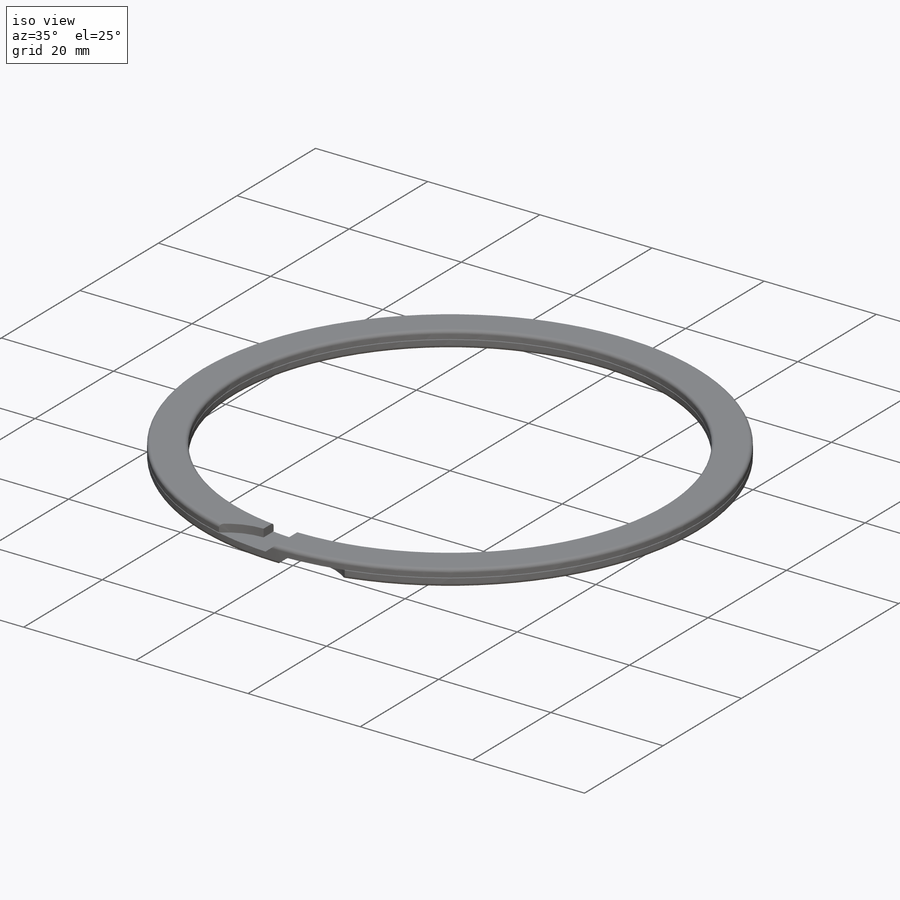
[diagram: iso view]
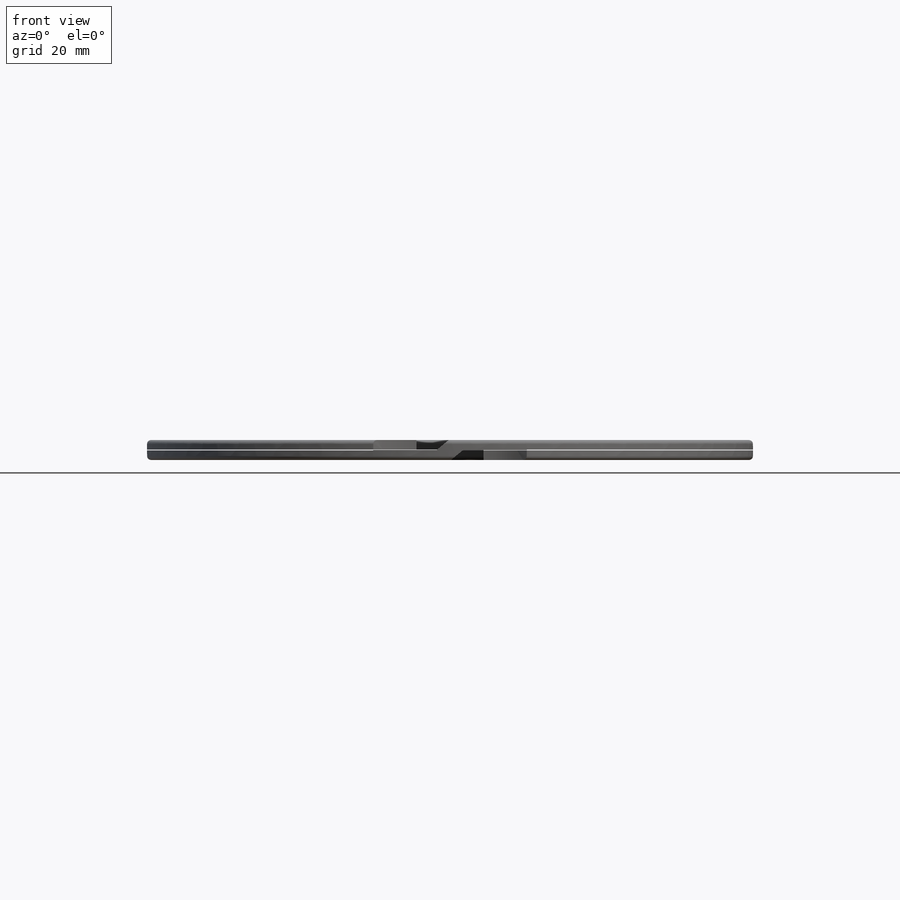
[diagram: front view]
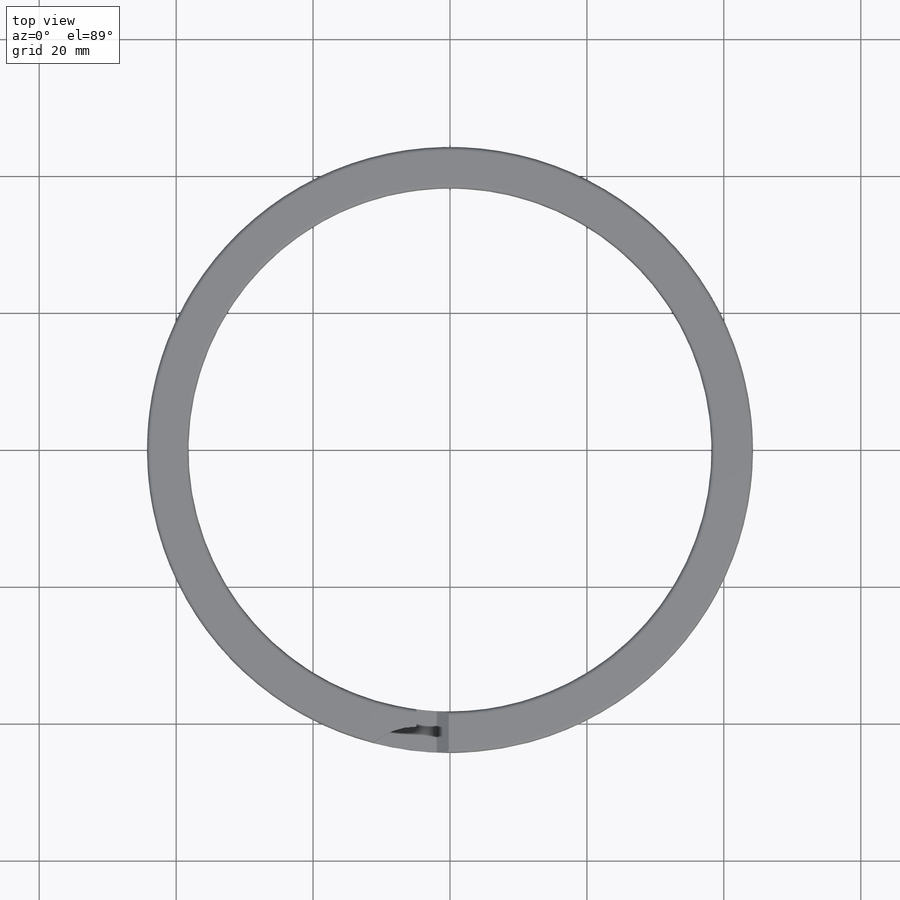
[diagram: top view]
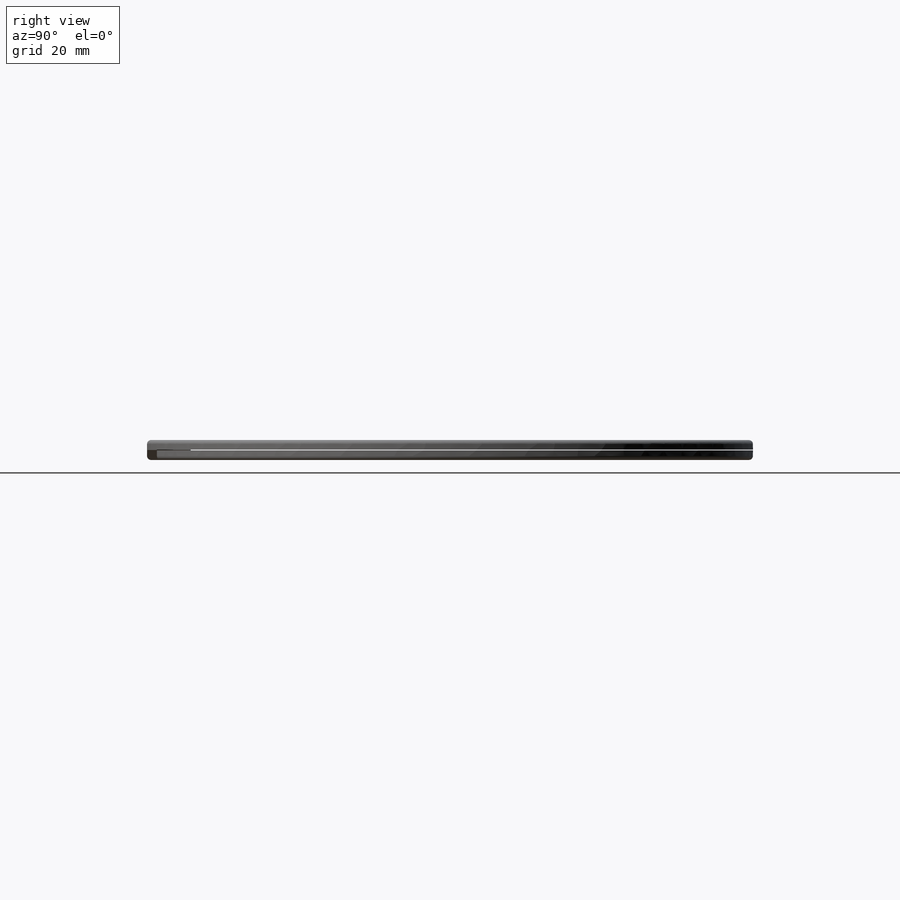
[diagram: right view]
SOLIDWORKS PART (.sldprt)
format: sldprt  version: not decoded by parser v0  size: 302,080 bytes
history: native  units: mm
features: plane x6, sketch x6, cut_extrude x5, material x1, revolve x1 (+11 scaffold rows collapsed)
feature tree (30):
  scaffold x11  (default folders/planes/origin — collapsed)
  material  "Material <not specified>"
  plane  "Plane4"
  sketch  "Sketch1"
  revolve  "Revolve1"  Angle=360deg
  plane  "Plane5"
  sketch  "Sketch2"
  cut_extrude  "Extrude1"  Depth=88.5mm
  plane  "Plane6"
  sketch  "Sketch3"
  cut_extrude  "Extrude2"  Depth=88.5mm
  plane  "Plane7"
  sketch  "Sketch4"
  cut_extrude  "Extrude3"  Depth=88.5mm
  plane  "Plane8"
  sketch  "Sketch5"
  cut_extrude  "Extrude4"  Depth=88.5mm
  plane  "Plane9"
  sketch  "Sketch6"
  cut_extrude  "Extrude5"  Depth=0.05mm
decode coverage: 6 of 12 modeling features carry decoded parameters
note: suppression state not decoded; provenance and decode notes live in map.json
